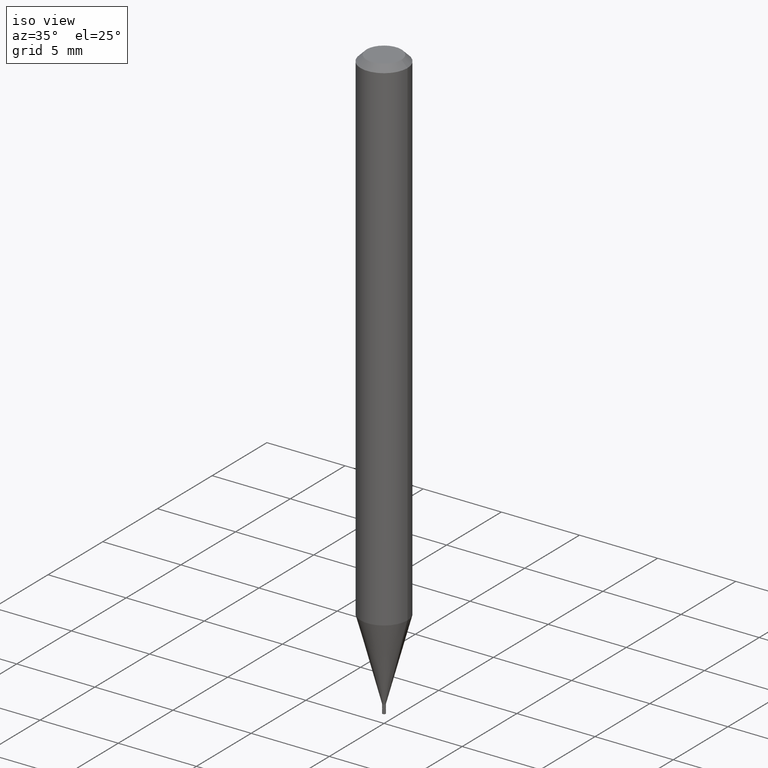
[diagram: clean part render]
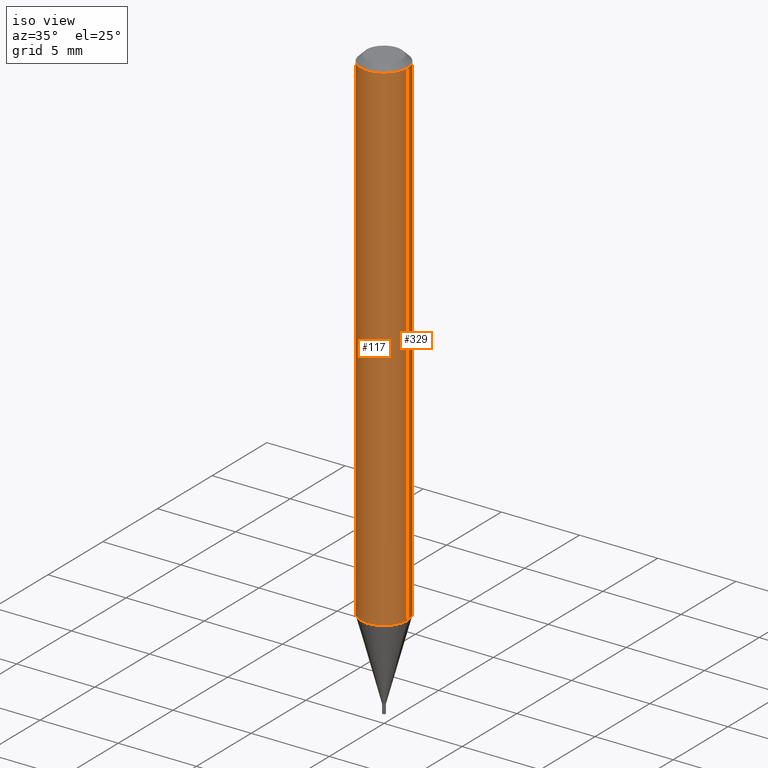
[diagram: same view with one multi-face feature highlighted, each face labeled with its STEP entity id]
A machine part, iso view. The highlighted faces form ONE feature: a constant-radius fillet chain: 2 tangent blend faces with common blend radius 1.4999 mm. The faces share edges in the B-rep.
Their STEP definitions:
[1] entity #117 (Cylinder):
#4 = ORIENTED_EDGE ( 'NONE', *, *, #378, .F. ) ;
#54 = CARTESIAN_POINT ( 'NONE',  ( -0.05904999999999999832, -4.022859678505539415E-15, -1.272364000502955284 ) ) ;
#86 = ORIENTED_EDGE ( 'NONE', *, *, #129, .T. ) ;
#113 = ORIENTED_EDGE ( 'NONE', *, *, #290, .F. ) ;
#117 = ADVANCED_FACE ( 'NONE', ( #128 ), #351, .T. ) ;
#124 = LINE ( 'NONE', #311, #344 ) ;
#128 = FACE_OUTER_BOUND ( 'NONE', #218, .T. ) ;
#129 = EDGE_CURVE ( 'NONE', #272, #259, #431, .T. ) ;
#136 = CARTESIAN_POINT ( 'NONE',  ( 0.05904999999999999832, -4.123439461173740327E-16, 2.879382386107500220E-30 ) ) ;
#151 = DIRECTION ( 'NONE',  ( 1.000000000000000000, -6.982962677686266711E-15, 0.000000000000000000 ) ) ;
#159 = ORIENTED_EDGE ( 'NONE', *, *, #384, .T. ) ;
#178 = DIRECTION ( 'NONE',  ( -2.445468806185136597E-29, 3.491481338843145583E-15, 1.000000000000000000 ) ) ;
#199 = AXIS2_PLACEMENT_3D ( 'NONE', #213, #178, #252 ) ;
#200 = CIRCLE ( 'NONE', #249, 0.05904999999999999832 ) ;
#213 = CARTESIAN_POINT ( 'NONE',  ( 0.000000000000000000, 0.000000000000000000, 0.000000000000000000 ) ) ;
#218 = EDGE_LOOP ( 'NONE', ( #113, #159, #86, #4 ) ) ;
#225 = DIRECTION ( 'NONE',  ( -2.445468806185136597E-29, 3.491481338843145583E-15, 1.000000000000000000 ) ) ;
#243 = CARTESIAN_POINT ( 'NONE',  ( 3.668203209277705088E-31, -5.237222008264718399E-17, -0.01499999999999999944 ) ) ;
#248 = DIRECTION ( 'NONE',  ( -2.445468806185136597E-29, 3.491481338843145583E-15, 1.000000000000000000 ) ) ;
#249 = AXIS2_PLACEMENT_3D ( 'NONE', #243, #225, #151 ) ;
#252 = DIRECTION ( 'NONE',  ( 1.000000000000000000, -6.982962677686266711E-15, 4.876176775795936353E-29 ) ) ;
#257 = VECTOR ( 'NONE', #429, 39.37007874015748143 ) ;
#259 = VERTEX_POINT ( 'NONE', #339 ) ;
#261 = CARTESIAN_POINT ( 'NONE',  ( -0.05904999999999999832, -1.827828206560924092E-15, -0.01499999999999999944 ) ) ;
#271 = VERTEX_POINT ( 'NONE', #54 ) ;
#272 = VERTEX_POINT ( 'NONE', #444 ) ;
#277 = DIRECTION ( 'NONE',  ( -2.445468806185136877E-29, 3.491481338843145188E-15, 1.000000000000000000 ) ) ;
#290 = EDGE_CURVE ( 'NONE', #271, #448, #124, .T. ) ;
#311 = CARTESIAN_POINT ( 'NONE',  ( -0.05904999999999999832, 4.195754854663391478E-16, -2.904631170795521892E-30 ) ) ;
#313 = AXIS2_PLACEMENT_3D ( 'NONE', #383, #248, #389 ) ;
#339 = CARTESIAN_POINT ( 'NONE',  ( 0.05904999999999999832, -4.647161662000212105E-16, -0.01499999999999999944 ) ) ;
#344 = VECTOR ( 'NONE', #277, 39.37007874015748143 ) ;
#351 = CYLINDRICAL_SURFACE ( 'NONE', #199, 0.05904999999999999832 ) ;
#378 = EDGE_CURVE ( 'NONE', #448, #259, #200, .T. ) ;
#383 = CARTESIAN_POINT ( 'NONE',  ( 3.111526473342906720E-29, -4.442435163971879697E-15, -1.272364000502955284 ) ) ;
#384 = EDGE_CURVE ( 'NONE', #271, #272, #463, .T. ) ;
#389 = DIRECTION ( 'NONE',  ( 1.000000000000000000, -6.982962677686273021E-15, 0.000000000000000000 ) ) ;
#429 = DIRECTION ( 'NONE',  ( -2.445468806185136877E-29, 3.491481338843145188E-15, 1.000000000000000000 ) ) ;
#431 = LINE ( 'NONE', #136, #257 ) ;
#444 = CARTESIAN_POINT ( 'NONE',  ( 0.05904999999999999832, -4.854779110089253829E-15, -1.272364000502955284 ) ) ;
#448 = VERTEX_POINT ( 'NONE', #261 ) ;
#463 = CIRCLE ( 'NONE', #313, 0.05904999999999999832 ) ;
[2] entity #329 (Cylinder):
#25 = DIRECTION ( 'NONE',  ( -2.445468806185136597E-29, 3.491481338843145583E-15, 1.000000000000000000 ) ) ;
#37 = EDGE_CURVE ( 'NONE', #272, #271, #247, .T. ) ;
#54 = CARTESIAN_POINT ( 'NONE',  ( -0.05904999999999999832, -4.022859678505539415E-15, -1.272364000502955284 ) ) ;
#65 = CARTESIAN_POINT ( 'NONE',  ( 3.111526473342906720E-29, -4.442435163971879697E-15, -1.272364000502955284 ) ) ;
#80 = EDGE_LOOP ( 'NONE', ( #343, #297, #137, #227 ) ) ;
#121 = AXIS2_PLACEMENT_3D ( 'NONE', #345, #25, #418 ) ;
#124 = LINE ( 'NONE', #311, #344 ) ;
#129 = EDGE_CURVE ( 'NONE', #272, #259, #431, .T. ) ;
#136 = CARTESIAN_POINT ( 'NONE',  ( 0.05904999999999999832, -4.123439461173740327E-16, 2.879382386107500220E-30 ) ) ;
#137 = ORIENTED_EDGE ( 'NONE', *, *, #427, .F. ) ;
#139 = CIRCLE ( 'NONE', #263, 0.05904999999999999832 ) ;
#163 = DIRECTION ( 'NONE',  ( -2.445468806185136597E-29, 3.491481338843145583E-15, 1.000000000000000000 ) ) ;
#171 = DIRECTION ( 'NONE',  ( 1.000000000000000000, -6.982962677686273021E-15, 0.000000000000000000 ) ) ;
#179 = DIRECTION ( 'NONE',  ( 1.000000000000000000, -6.982962677686266711E-15, 0.000000000000000000 ) ) ;
#227 = ORIENTED_EDGE ( 'NONE', *, *, #129, .F. ) ;
#229 = FACE_OUTER_BOUND ( 'NONE', #80, .T. ) ;
#247 = CIRCLE ( 'NONE', #363, 0.05904999999999999832 ) ;
#257 = VECTOR ( 'NONE', #429, 39.37007874015748143 ) ;
#259 = VERTEX_POINT ( 'NONE', #339 ) ;
#261 = CARTESIAN_POINT ( 'NONE',  ( -0.05904999999999999832, -1.827828206560924092E-15, -0.01499999999999999944 ) ) ;
#263 = AXIS2_PLACEMENT_3D ( 'NONE', #286, #358, #179 ) ;
#271 = VERTEX_POINT ( 'NONE', #54 ) ;
#272 = VERTEX_POINT ( 'NONE', #444 ) ;
#277 = DIRECTION ( 'NONE',  ( -2.445468806185136877E-29, 3.491481338843145188E-15, 1.000000000000000000 ) ) ;
#286 = CARTESIAN_POINT ( 'NONE',  ( 3.668203209277705088E-31, -5.237222008264718399E-17, -0.01499999999999999944 ) ) ;
#290 = EDGE_CURVE ( 'NONE', #271, #448, #124, .T. ) ;
#297 = ORIENTED_EDGE ( 'NONE', *, *, #290, .T. ) ;
#307 = CYLINDRICAL_SURFACE ( 'NONE', #121, 0.05904999999999999832 ) ;
#311 = CARTESIAN_POINT ( 'NONE',  ( -0.05904999999999999832, 4.195754854663391478E-16, -2.904631170795521892E-30 ) ) ;
#329 = ADVANCED_FACE ( 'NONE', ( #229 ), #307, .T. ) ;
#339 = CARTESIAN_POINT ( 'NONE',  ( 0.05904999999999999832, -4.647161662000212105E-16, -0.01499999999999999944 ) ) ;
#343 = ORIENTED_EDGE ( 'NONE', *, *, #37, .T. ) ;
#344 = VECTOR ( 'NONE', #277, 39.37007874015748143 ) ;
#345 = CARTESIAN_POINT ( 'NONE',  ( 0.000000000000000000, 0.000000000000000000, 0.000000000000000000 ) ) ;
#358 = DIRECTION ( 'NONE',  ( -2.445468806185136597E-29, 3.491481338843145583E-15, 1.000000000000000000 ) ) ;
#363 = AXIS2_PLACEMENT_3D ( 'NONE', #65, #163, #171 ) ;
#418 = DIRECTION ( 'NONE',  ( 1.000000000000000000, -6.982962677686266711E-15, 4.876176775795936353E-29 ) ) ;
#427 = EDGE_CURVE ( 'NONE', #259, #448, #139, .T. ) ;
#429 = DIRECTION ( 'NONE',  ( -2.445468806185136877E-29, 3.491481338843145188E-15, 1.000000000000000000 ) ) ;
#431 = LINE ( 'NONE', #136, #257 ) ;
#444 = CARTESIAN_POINT ( 'NONE',  ( 0.05904999999999999832, -4.854779110089253829E-15, -1.272364000502955284 ) ) ;
#448 = VERTEX_POINT ( 'NONE', #261 ) ;